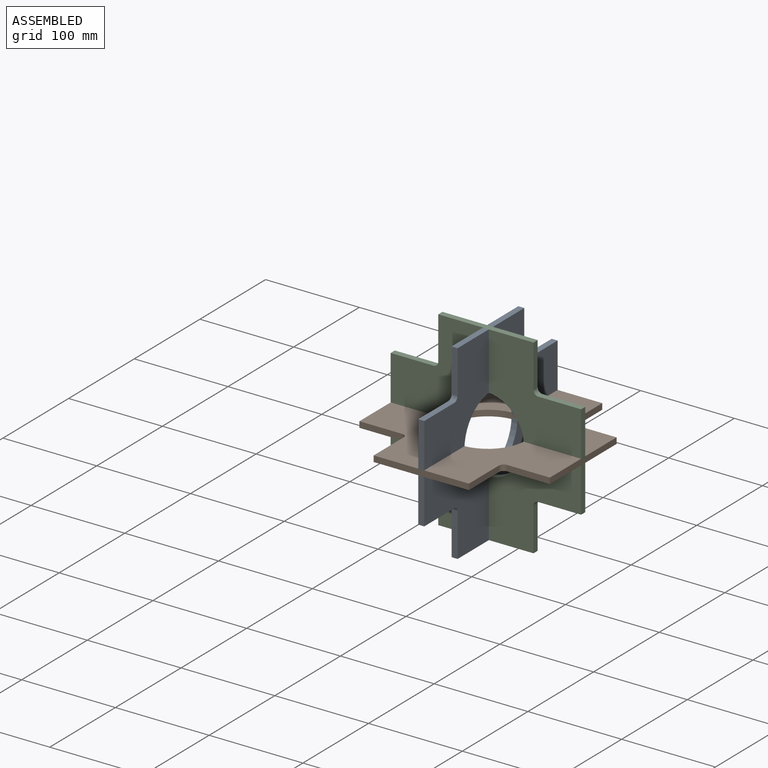
[diagram: assembled view]
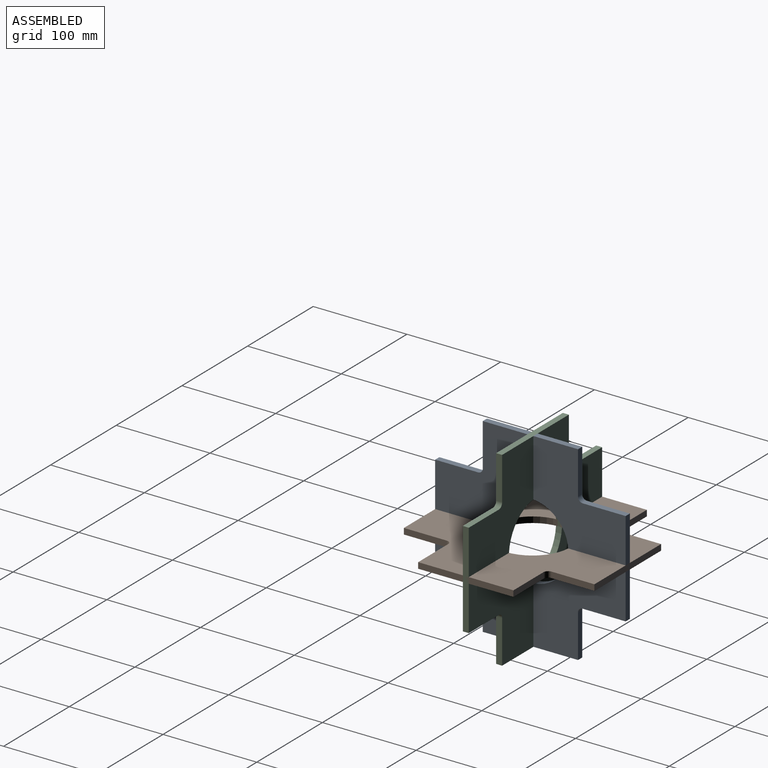
[diagram: assembled view, second angle]
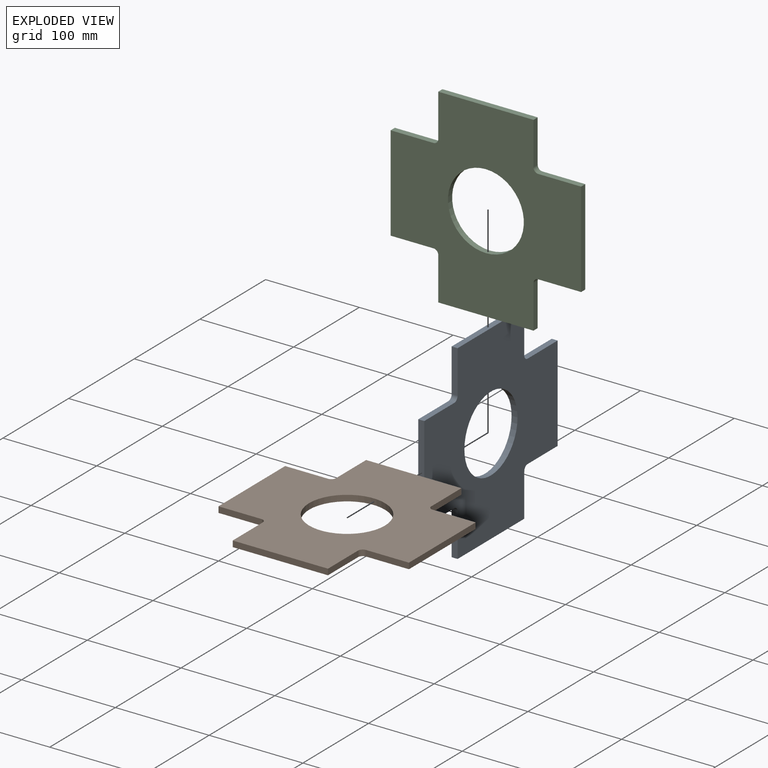
[diagram: exploded view]
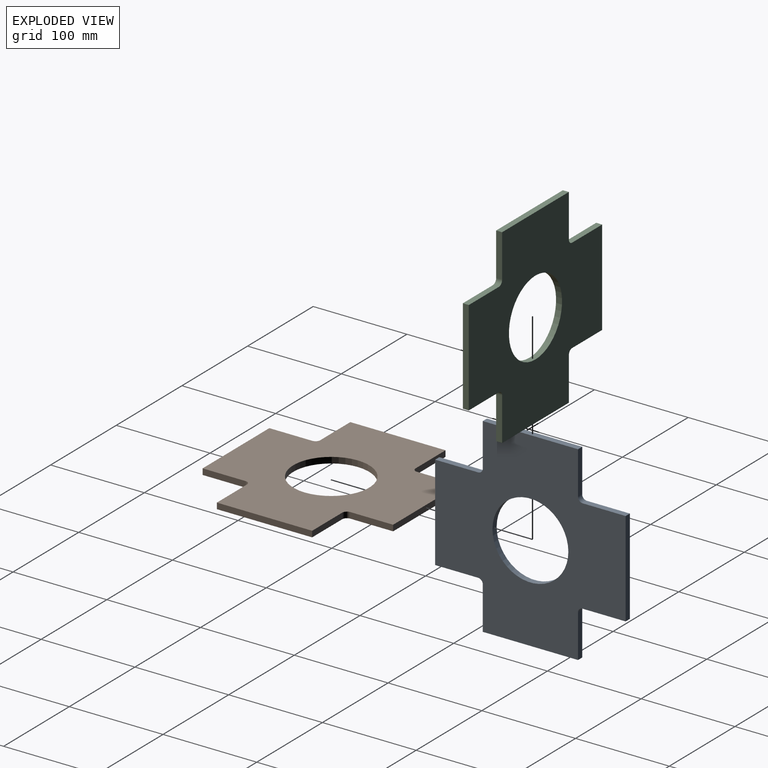
[diagram: exploded view, second angle]
ASSEMBLY  parts=3 mates=3
PART A: 19 faces, bbox 203.2x6.4x203.2 mm
  f0: plane 45.72x6.35mm, normal (1,0,0), area 290.3mm2, adj f12,f13,f14,f15
  f1: plane 45.72x6.35mm, normal (0,0,-1), area 290.3mm2, adj f2,f13,f14,f15
  f2: plane 101.6x6.35mm, normal (1,0,0), area 645.2mm2, adj f1,f3,f13,f14
  f3: plane 45.72x6.35mm, normal (0,0,1), area 290.3mm2, adj f2,f13,f14,f16
  f4: plane 45.72x6.35mm, normal (1,0,0), area 290.3mm2, adj f5,f13,f14,f16
  f5: plane 101.6x6.35mm, normal (0,0,1), area 645.2mm2, adj f4,f6,f13,f14
  f6: plane 45.72x6.35mm, normal (-1,0,0), area 290.3mm2, adj f5,f13,f14,f17
  f7: plane 45.72x6.35mm, normal (0,0,1), area 290.3mm2, adj f8,f13,f14,f17
  f8: plane 101.6x6.35mm, normal (-1,0,0), area 645.2mm2, adj f7,f9,f13,f14
  f9: plane 45.72x6.35mm, normal (0,0,-1), area 290.3mm2, adj f8,f13,f14,f18
  f10: plane 45.72x6.35mm, normal (-1,0,0), area 290.3mm2, adj f12,f13,f14,f18
  f11: cylinder r=40.47mm len=80.94mm, axis (0,1,0), area 1614.8mm2, adj f13,f14
  f12: plane 101.6x6.35mm, normal (0,0,-1), area 645.2mm2, adj f0,f10,f13,f14
  f13: plane 203.2x203.2mm, normal (0,-1,0), area 25843.9mm2, adj f0,f1,f2,f3,f4,f5,f6,f7
  f14: plane 203.2x203.2mm, normal (0,1,0), area 25843.9mm2, adj f0,f1,f2,f3,f4,f5,f6,f7
  f15: cylinder r=5.08mm len=6.35mm, axis (0,1,0), area 50.7mm2, adj f0,f1,f13,f14
  f16: cylinder r=5.08mm len=6.35mm, axis (0,-1,0), area 50.7mm2, adj f3,f4,f13,f14
  f17: cylinder r=5.08mm len=6.35mm, axis (0,1,0), area 50.7mm2, adj f6,f7,f13,f14
  f18: cylinder r=5.08mm len=6.35mm, axis (0,-1,0), area 50.7mm2, adj f9,f10,f13,f14
PART B: same geometry as A
PART C: same geometry as A
PLACE A rot(axis=(0,0,1),90deg) t=(168.97,-235.4,184.11)mm
PLACE B rot(axis=(-1,0,0),90deg) t=(172.15,-235.4,180.94)mm
PLACE C rot(axis=(0,-1,0),90deg) t=(172.15,-232.22,184.11)mm fixed
MATE fastened C.f2 <-> A.f5  axis (0,0,1) through (172.15,-235.4,285.71)mm
MATE fastened B.f5 <-> A.f2  axis (0,1,0) through (172.15,-133.8,184.11)mm
MATE planar A.f5 <-> C.f2  axis (0,0,1) through (168.97,-184.6,285.71)mm
